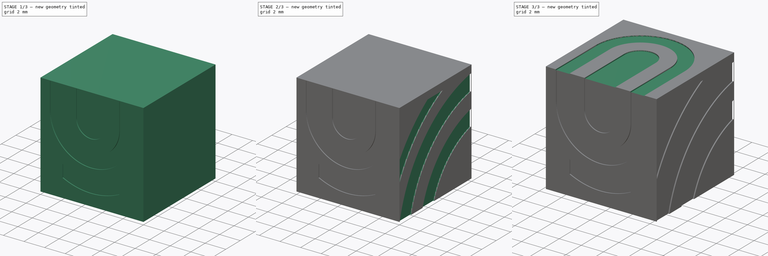
[diagram: build sequence overview — one tinted view per stage of 3, left to right]
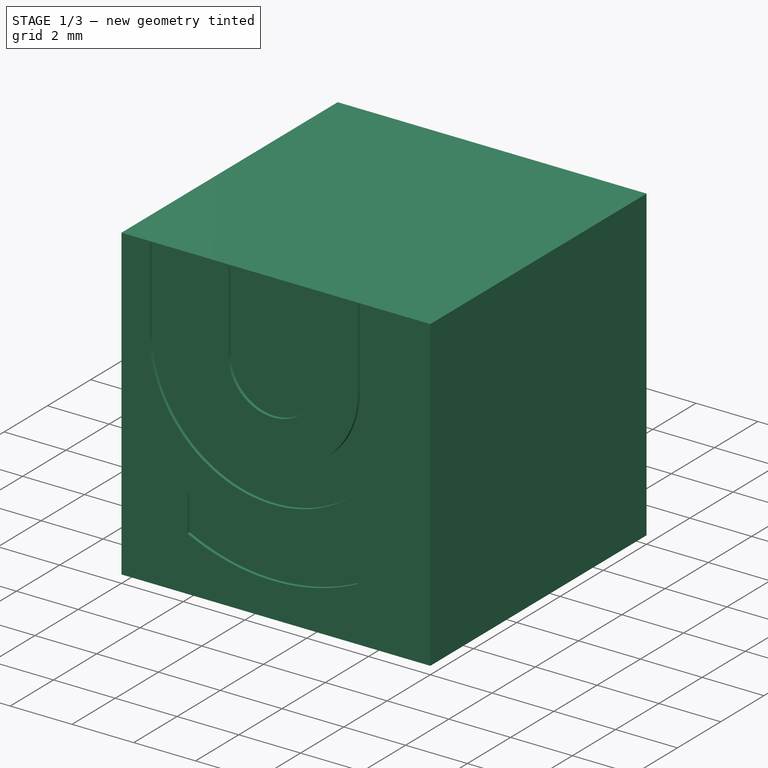
[diagram: stage 1 of 3 — iso view after this stage's code; geometry added in this stage tinted green]
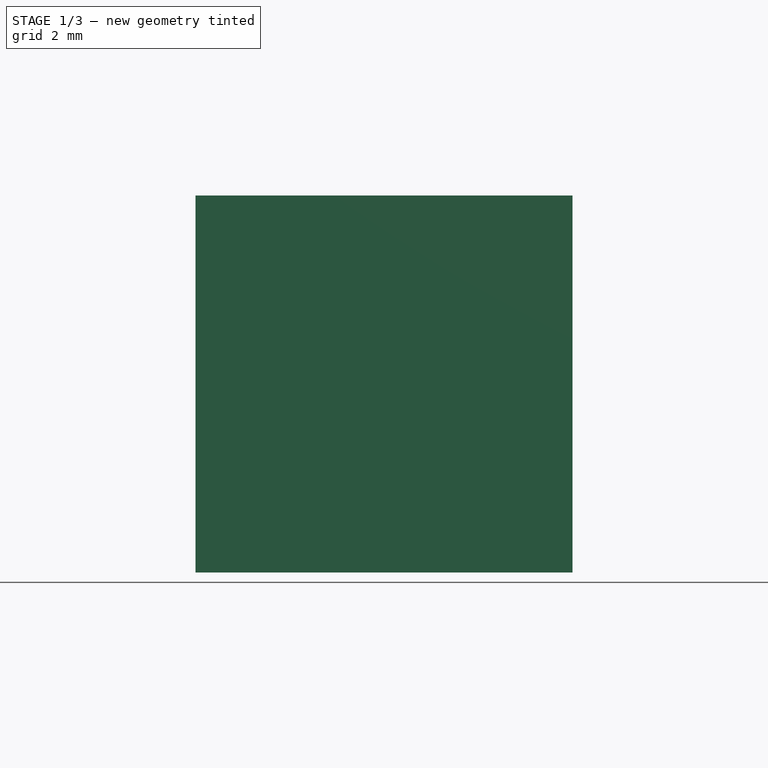
[diagram: stage 1 of 3 — front view after this stage's code; geometry added in this stage tinted green]
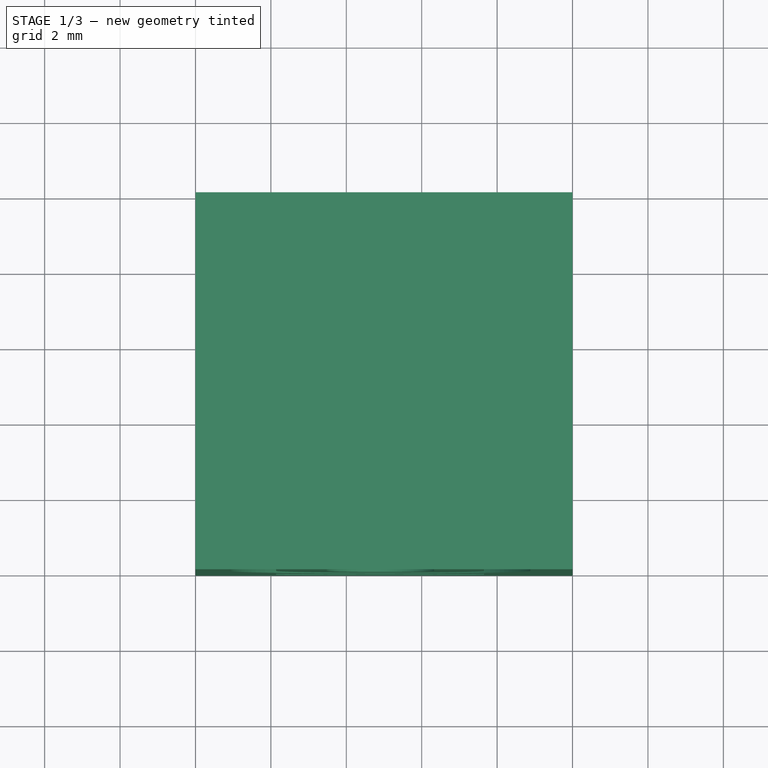
[diagram: stage 1 of 3 — top view after this stage's code; geometry added in this stage tinted green]
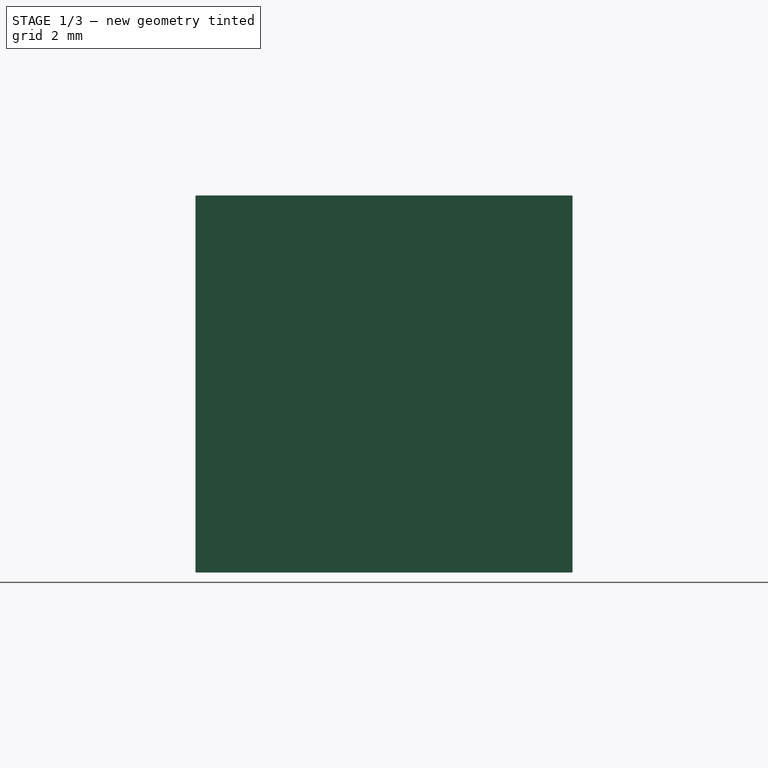
[diagram: stage 1 of 3 — right view after this stage's code; geometry added in this stage tinted green]
FCSTD DOCUMENT  (FreeCAD 0.16R6706 (Git))
Label: doortem-third
License: All rights reserved
LicenseURL: http://en.wikipedia.org/wiki/All_rights_reserved
objects: Sketcher::SketchObject×6, PartDesign::Pocket×5, Part::Box×1, PartDesign::Pad×1, PartDesign::Chamfer×1
note: 20 computed .brp shape members not serialized (recipe doc carries the construction recipe); baked Part::Feature solids carry a one-line shape summary decoded from their .brp

FEATURE [Part::Box] Box  label="Cube"
  Height = 10
  Length = 10
  Width = 10
FEATURE [Sketcher::SketchObject] Sketch  label="Front"
  Placement = pos=(0,0,0) rot=(1,0,0;1.5708rad)
  Support = -> Box [Face3]
  sketch-geometry (16):
    g0: ArcOfCircle CenterX=4.89521 CenterY=7.33926 CenterZ=0 NormalX=0 NormalY=0 NormalZ=1 Radius=1.4315 StartAngle=3.14159 EndAngle=6.28319
    g1: LineSegment StartX=6.32671 StartY=7.33926 StartZ=0 EndX=6.32671 EndY=9.95769 EndZ=0
    g2: LineSegment StartX=3.46371 StartY=7.33926 StartZ=0 EndX=3.46371 EndY=9.95769 EndZ=0
    g3: ArcOfCircle CenterX=4.89521 CenterY=7.33926 CenterZ=0 NormalX=0 NormalY=0 NormalZ=1 Radius=2.75621 StartAngle=3.14159 EndAngle=6.28319
    g4: LineSegment StartX=7.65142 StartY=7.33926 StartZ=0 EndX=7.65142 EndY=9.95769 EndZ=0
    g5: LineSegment StartX=2.13899 StartY=7.33926 StartZ=0 EndX=2.13899 EndY=9.95769 EndZ=0
    g6: ArcOfCircle CenterX=4.89521 CenterY=7.33926 CenterZ=0 NormalX=0 NormalY=0 NormalZ=1 Radius=3.98423 StartAngle=3.14159 EndAngle=6.28319
    g7: LineSegment StartX=8.87943 StartY=7.33926 StartZ=0 EndX=8.87943 EndY=9.95769 EndZ=0
    g8: LineSegment StartX=0.91098 StartY=7.33926 StartZ=0 EndX=0.91098 EndY=9.95769 EndZ=0
    g9: LineSegment StartX=3.46371 StartY=9.95769 StartZ=0 EndX=6.32671 EndY=9.95769 EndZ=0
    g10: LineSegment StartX=0.91098 StartY=9.95769 StartZ=0 EndX=2.13899 EndY=9.95769 EndZ=0
    g11: LineSegment StartX=7.65142 StartY=9.95769 StartZ=0 EndX=8.87943 EndY=9.95769 EndZ=0
    g12: ArcOfCircle CenterX=4.89521 CenterY=7.33926 CenterZ=0 NormalX=0 NormalY=0 NormalZ=1 Radius=5.14159 StartAngle=4.14662 EndAngle=5.27816
    g13: ArcOfCircle CenterX=4.89521 CenterY=7.33926 CenterZ=0 NormalX=0 NormalY=0 NormalZ=1 Radius=6.21322 StartAngle=4.25277 EndAngle=5.17201
    g14: LineSegment StartX=2.13899 StartY=1.77084 StartZ=0 EndX=2.13899 EndY=2.99885 EndZ=0
    g15: LineSegment StartX=7.65142 StartY=2.99885 StartZ=0 EndX=7.65142 EndY=1.77084 EndZ=0
  constraints (36):
    c: Tangent(g0,g2) = 1.5708
    c: Tangent(g0,g1) = -1.5708
    c: Vertical(g1)
    c: Tangent(g3,g5) = 1.5708
    c: Tangent(g3,g4) = -1.5708
    c: Vertical(g4)
    c: Tangent(g6,g8) = 1.5708
    c: Tangent(g6,g7) = -1.5708
    c: Vertical(g7)
    c: Coincident(g6,g3)
    c: Coincident(g3,g0)
    c: Coincident(g9,g2)
    c: Coincident(g9,g1)
    c: Horizontal(g9)
    c: Coincident(g10,g8)
    c: Coincident(g10,g5)
    c: Coincident(g11,g4)
    c: Coincident(g11,g7)
    c: Horizontal(g11)
    c: Horizontal(g10)
    c: DistanceY(g2,g5) = 0
    c: DistanceY(g1,g4) = 0
    c: Vertical(g8)
    c: Vertical(g5)
    c: Vertical(g2)
    c: Coincident(g14,g13)
    c: Coincident(g14,g12)
    c: Coincident(g15,g12)
    c: Coincident(g15,g13)
    c: Coincident(g12,g13)
    c: Coincident(g0,g12)
    c: Vertical(g14)
    c: Vertical(g15)
    c: Equal(g15,g10)
    c: DistanceX(g3,g12) = 0
    c: DistanceX(g12,g3) = 0
FEATURE [PartDesign::Pocket] Pocket
  Length = 0.1
  Sketch = -> Sketch
  Type = 0
FEATURE [Sketcher::SketchObject] Sketch002  label="Side A"
  Placement = pos=(0,0,0) rot=(0.57735,-0.57735,-0.57735;2.0944rad)
  Support = -> Pocket [Face1]
  sketch-geometry (12):
    g0: ArcOfCircle CenterX=-11.883 CenterY=-2.74459 CenterZ=0 NormalX=0 NormalY=0 NormalZ=1 Radius=7.57889 StartAngle=0.370558 EndAngle=1.31083
    g1: ArcOfCircle CenterX=-11.883 CenterY=-2.74459 CenterZ=0 NormalX=0 NormalY=0 NormalZ=1 Radius=9.09546 StartAngle=0.306531 EndAngle=1.35494
    g2: ArcOfCircle CenterX=-11.883 CenterY=-2.74459 CenterZ=0 NormalX=0 NormalY=0 NormalZ=1 Radius=10.6013 StartAngle=0.261875 EndAngle=1.38598
    g3: ArcOfCircle CenterX=-11.883 CenterY=-2.74459 CenterZ=0 NormalX=0 NormalY=0 NormalZ=1 Radius=12.1606 StartAngle=0.227656 EndAngle=1.4099
    g4: ArcOfCircle CenterX=-11.883 CenterY=-2.74459 CenterZ=0 NormalX=0 NormalY=0 NormalZ=1 Radius=13.3679 StartAngle=0.481692 EndAngle=1.11506
    g5: ArcOfCircle CenterX=-11.883 CenterY=-2.74459 CenterZ=0 NormalX=0 NormalY=0 NormalZ=1 Radius=14.4101 StartAngle=0.605674 EndAngle=0.984497
    g6: LineSegment StartX=-9.93486 StartY=6.1398 StartZ=0 EndX=-9.93486 EndY=4.57965 EndZ=0
    g7: LineSegment StartX=-4.81849 StartY=0 StartZ=0 EndX=-3.21148 EndY=0 EndZ=0
    g8: LineSegment StartX=-9.93486 StartY=9.25896 StartZ=0 EndX=-9.93486 EndY=7.67614 EndZ=0
    g9: LineSegment StartX=-1.64314 StartY=0 StartZ=0 EndX=-0.0361256 EndY=0 EndZ=0
    g10: LineSegment StartX=-0.0361256 StartY=3.4485 StartZ=0 EndX=-0.0361256 EndY=5.45933 EndZ=0
    g11: LineSegment StartX=-5.99937 StartY=9.25896 StartZ=0 EndX=-3.91009 EndY=9.25896 EndZ=0
  constraints (29):
    c: PointOnObject(g1,g-1)
    c: PointOnObject(g3,g-1)
    c: Coincident(g6,g1)
    c: Coincident(g6,g0)
    c: Coincident(g7,g0)
    c: Coincident(g7,g1)
    c: Coincident(g8,g3)
    c: Coincident(g8,g2)
    c: Vertical(g8)
    c: Coincident(g9,g2)
    c: Coincident(g9,g3)
    c: Horizontal(g9)
    c: Coincident(g10,g4)
    c: Coincident(g10,g5)
    c: Coincident(g11,g4)
    c: Coincident(g11,g5)
    c: Vertical(g6)
    c: Horizontal(g7)
    c: Vertical(g10)
    c: Horizontal(g11)
    c: Coincident(g0,g1)
    c: Coincident(g4,g5)
    c: Coincident(g2,g3)
    c: Coincident(g0,g2)
    c: DistanceX(g2,g1) = 0
    c: Coincident(g0,g4)
    c: Equal(g9,g7)
    c: DistanceX(g4,g3) = 0
    c: DistanceY(g3,g4) = 0
FEATURE [PartDesign::Pocket] Pocket001
  Length = 0.1
  Sketch = -> Sketch002
  Type = 0
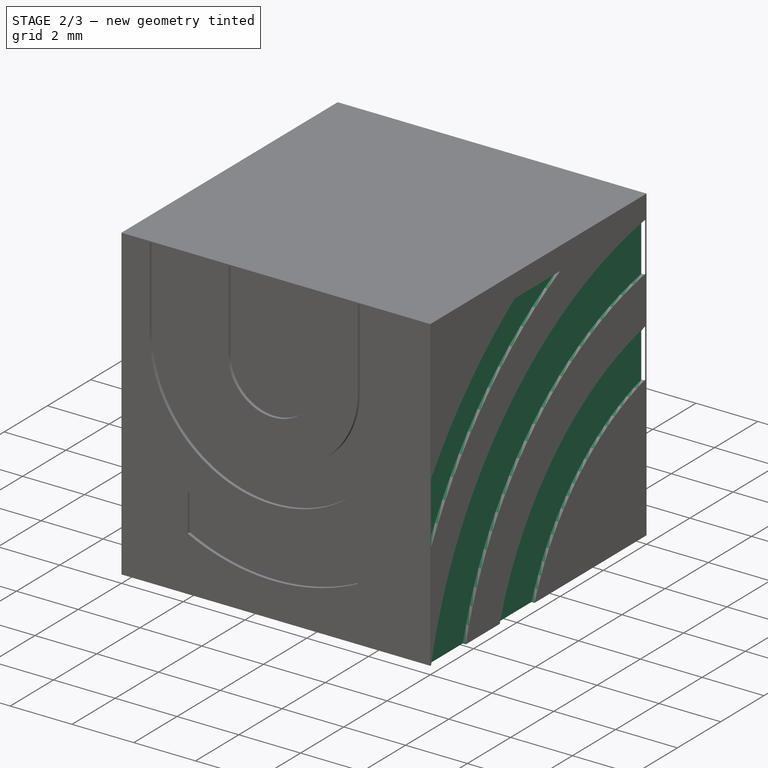
[diagram: stage 2 of 3 — iso view after this stage's code; geometry added in this stage tinted green]
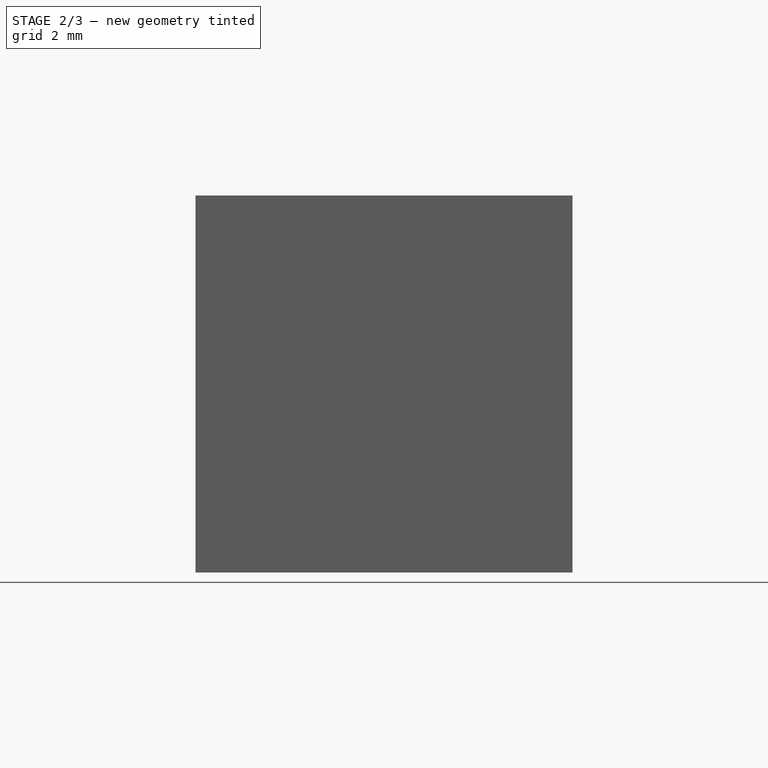
[diagram: stage 2 of 3 — front view after this stage's code; geometry added in this stage tinted green]
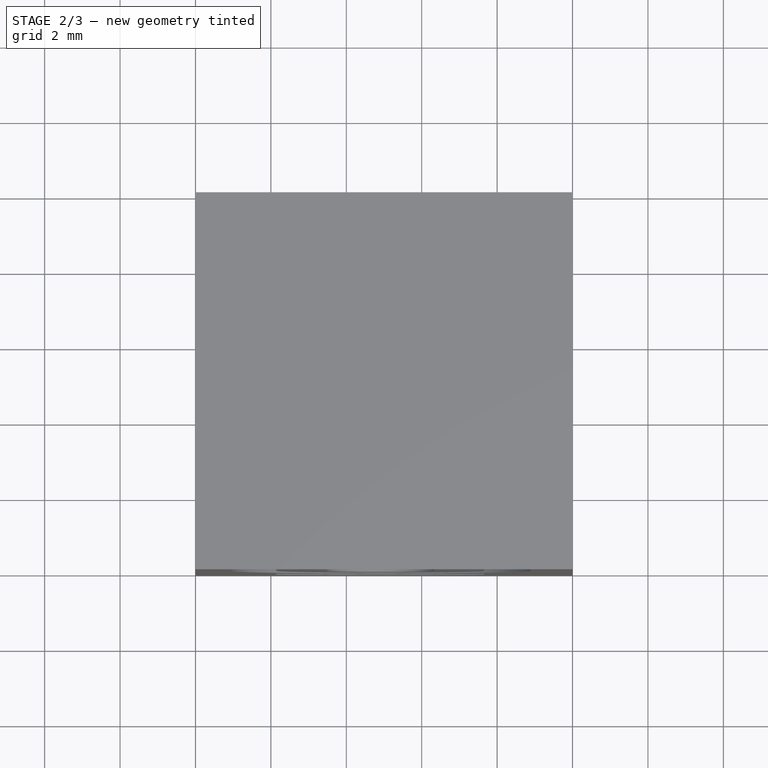
[diagram: stage 2 of 3 — top view after this stage's code; geometry added in this stage tinted green]
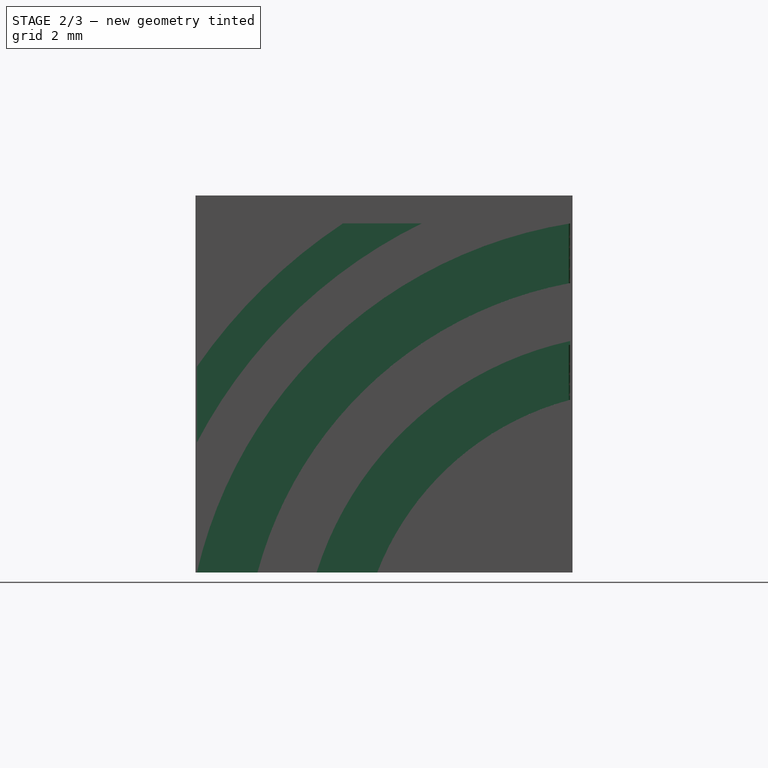
[diagram: stage 2 of 3 — right view after this stage's code; geometry added in this stage tinted green]
FEATURE [Sketcher::SketchObject] MirroredSketch  label="Side B"
  Placement = pos=(10,0,0) rot=(0.57735,0.57735,0.57735;2.0944rad)
  Support = -> Pocket001 [Face16]
  sketch-geometry (12):
    g0: ArcOfCircle CenterX=11.883 CenterY=-2.74459 CenterZ=0 NormalX=0 NormalY=0 NormalZ=1 Radius=7.57889 StartAngle=1.83076 EndAngle=2.77103
    g1: ArcOfCircle CenterX=11.883 CenterY=-2.74459 CenterZ=0 NormalX=0 NormalY=0 NormalZ=1 Radius=9.09546 StartAngle=1.78665 EndAngle=2.83506
    g2: ArcOfCircle CenterX=11.883 CenterY=-2.74459 CenterZ=0 NormalX=0 NormalY=0 NormalZ=1 Radius=10.6013 StartAngle=1.75561 EndAngle=2.87972
    g3: ArcOfCircle CenterX=11.883 CenterY=-2.74459 CenterZ=0 NormalX=0 NormalY=0 NormalZ=1 Radius=12.1606 StartAngle=1.73169 EndAngle=2.91394
    g4: ArcOfCircle CenterX=11.883 CenterY=-2.74459 CenterZ=0 NormalX=0 NormalY=0 NormalZ=1 Radius=13.3679 StartAngle=2.02654 EndAngle=2.6599
    g5: ArcOfCircle CenterX=11.883 CenterY=-2.74459 CenterZ=0 NormalX=0 NormalY=0 NormalZ=1 Radius=14.4101 StartAngle=2.1571 EndAngle=2.53592
    g6: LineSegment StartX=9.93486 StartY=6.1398 StartZ=0 EndX=9.93486 EndY=4.57965 EndZ=0
    g7: LineSegment StartX=4.81849 StartY=0 StartZ=0 EndX=3.21148 EndY=0 EndZ=0
    g8: LineSegment StartX=9.93486 StartY=9.25896 StartZ=0 EndX=9.93486 EndY=7.67614 EndZ=0
    g9: LineSegment StartX=1.64314 StartY=0 StartZ=0 EndX=0.0361256 EndY=0 EndZ=0
    g10: LineSegment StartX=0.0361256 StartY=3.4485 StartZ=0 EndX=0.0361256 EndY=5.45933 EndZ=0
    g11: LineSegment StartX=5.99937 StartY=9.25896 StartZ=0 EndX=3.91009 EndY=9.25896 EndZ=0
  constraints (24):
    c: Coincident(g6,g1)
    c: Coincident(g6,g0)
    c: Coincident(g7,g0)
    c: Coincident(g7,g1)
    c: Coincident(g8,g3)
    c: Coincident(g8,g2)
    c: Vertical(g8)
    c: Coincident(g9,g2)
    c: Coincident(g9,g3)
    c: Horizontal(g9)
    c: Coincident(g10,g4)
    c: Coincident(g10,g5)
    c: Coincident(g11,g4)
    c: Coincident(g11,g5)
    c: Vertical(g6)
    c: Horizontal(g7)
    c: Vertical(g10)
    c: Horizontal(g11)
    c: Coincident(g0,g1)
    c: Coincident(g4,g5)
    c: Coincident(g2,g3)
    c: Coincident(g0,g2)
    c: Coincident(g0,g4)
    c: Equal(g9,g7)
FEATURE [PartDesign::Pocket] Pocket002
  Length = 0.1
  Sketch = -> MirroredSketch
  Type = 0
FEATURE [Sketcher::SketchObject] Sketch003  label="Back"
  Placement = pos=(0,10,0) rot=(0,0.707107,0.707107;3.14159rad)
  Support = -> Pocket002 [Face3]
  sketch-geometry (26):
    g0: LineSegment StartX=-9.99966 StartY=-0.012374 StartZ=0 EndX=-8.64355 EndY=-0.012374 EndZ=0
    g1: LineSegment StartX=-8.64355 StartY=-0.012374 StartZ=0 EndX=-8.64355 EndY=1.99585 EndZ=0
    g2: LineSegment StartX=-9.99966 StartY=6.16434 StartZ=0 EndX=-9.99966 EndY=-0.012374 EndZ=0
    g3: LineSegment StartX=-1.54769 StartY=0 StartZ=0 EndX=0 EndY=0 EndZ=0
    g4: LineSegment StartX=0 StartY=0 StartZ=0 EndX=0 EndY=6.16434 EndZ=0
    g5: LineSegment StartX=-1.54769 StartY=1.99585 StartZ=0 EndX=-1.54769 EndY=0 EndZ=0
    g6: LineSegment StartX=-4.10436 StartY=0 StartZ=0 EndX=-2.66536 EndY=0 EndZ=0
    g7: LineSegment StartX=-2.66536 StartY=0 StartZ=0 EndX=-2.66536 EndY=1.99585 EndZ=0
    g8: LineSegment StartX=0 StartY=7.65437 StartZ=0 EndX=0 EndY=9.37382 EndZ=0
    g9: LineSegment StartX=-4.10436 StartY=1.99585 StartZ=0 EndX=-4.10436 EndY=0 EndZ=0
    g10: LineSegment StartX=-7.61615 StartY=0 StartZ=0 EndX=-6.26004 EndY=0 EndZ=0
    g11: LineSegment StartX=-6.26004 StartY=0 StartZ=0 EndX=-6.26004 EndY=1.99585 EndZ=0
    g12: LineSegment StartX=-9.99966 StartY=9.37382 StartZ=0 EndX=-9.99966 EndY=7.65437 EndZ=0
    g13: LineSegment StartX=-7.61615 StartY=1.99585 StartZ=0 EndX=-7.61615 EndY=0 EndZ=0
    g14: LineSegment StartX=-6.65638 StartY=9.37382 StartZ=0 EndX=-5.36304 EndY=9.37382 EndZ=0
    g15: LineSegment StartX=-4.48209 StartY=9.37382 StartZ=0 EndX=-3.02029 EndY=9.37382 EndZ=0
    g16: ArcOfCircle CenterX=-14.8338 CenterY=2.28684 CenterZ=0 NormalX=0 NormalY=0 NormalZ=1 Radius=6.19711 StartAngle=6.23621 EndAngle=6.95921
    g17: ArcOfCircle CenterX=-14.8338 CenterY=2.28684 CenterZ=0 NormalX=0 NormalY=0 NormalZ=1 Radius=7.22354 StartAngle=6.24289 EndAngle=7.12082
    g18: ArcOfCircle CenterX=-14.8338 CenterY=2.28684 CenterZ=0 NormalX=0 NormalY=0 NormalZ=1 Radius=8.57872 StartAngle=6.24926 EndAngle=7.25536
    g19: ArcOfCircle CenterX=-14.8338 CenterY=2.28684 CenterZ=0 NormalX=0 NormalY=0 NormalZ=1 Radius=10.8211 StartAngle=0.417978 EndAngle=0.714081
    g20: ArcOfCircle CenterX=-14.8338 CenterY=2.28684 CenterZ=0 NormalX=0 NormalY=0 NormalZ=1 Radius=11.8288 StartAngle=0.580749 EndAngle=0.642411
    g21: ArcOfCircle CenterX=4.05602 CenterY=2.28684 CenterZ=0 NormalX=0 NormalY=0 NormalZ=1 Radius=5.61126 StartAngle=2.37869 EndAngle=3.19347
    g22: ArcOfCircle CenterX=4.05602 CenterY=2.28684 CenterZ=0 NormalX=0 NormalY=0 NormalZ=1 Radius=6.72768 StartAngle=2.21791 EndAngle=3.18486
    g23: ArcOfCircle CenterX=4.05602 CenterY=2.28684 CenterZ=0 NormalX=0 NormalY=0 NormalZ=1 Radius=8.16557 StartAngle=2.09061 EndAngle=3.17724
    g24: ArcOfCircle CenterX=4.05602 CenterY=2.28684 CenterZ=0 NormalX=0 NormalY=0 NormalZ=1 Radius=10.015 StartAngle=2.35544 EndAngle=2.68757
    g25: ArcOfCircle CenterX=4.05602 CenterY=2.28684 CenterZ=0 NormalX=0 NormalY=0 NormalZ=1 Radius=11.0962 StartAngle=2.4488 EndAngle=2.51686
  constraints (68):
    c: Coincident(g0,g1)
    c: Vertical(g1)
    c: Coincident(g2,g0)
    c: Vertical(g2)
    c: PointOnObject(g3,g-1)
    c: Coincident(g3,g-1)
    c: Coincident(g3,g4)
    c: PointOnObject(g4,g-2)
    c: Coincident(g5,g3)
    c: Vertical(g5)
    c: Horizontal(g6)
    c: Coincident(g6,g7)
    c: Vertical(g8)
    c: Coincident(g9,g6)
    c: Coincident(g10,g11)
    c: Vertical(g12)
    c: Coincident(g13,g10)
    c: Horizontal(g0)
    c: Horizontal(g10)
    c: DistanceY(g10,g6) = 0
    c: DistanceY(g6,g3) = 0
    c: Vertical(g13)
    c: Vertical(g11)
    c: Vertical(g9)
    c: Vertical(g7)
    c: DistanceX(g12,g2) = 0
    c: DistanceX(g8,g4) = 0
    c: Horizontal(g14)
    c: Horizontal(g15)
    c: DistanceX(g20,g19) = 0
    c: Coincident(g16,g2)
    c: Coincident(g16,g1)
    c: Coincident(g17,g12)
    c: Coincident(g17,g13)
    c: Coincident(g18,g12)
    c: Coincident(g18,g11)
    c: Coincident(g19,g14)
    c: Coincident(g20,g14)
    c: Coincident(g16,g17)
    c: Coincident(g16,g18)
    c: Coincident(g16,g19)
    c: Coincident(g16,g20)
    c: DistanceY(g14,g12) = 0
    c: Equal(g0,g10)
    c: DistanceY(g15,g14) = 0
    c: DistanceY(g1,g13) = 0
    c: DistanceY(g13,g11) = 0
    c: Coincident(g21,g4)
    c: Coincident(g21,g5)
    c: Coincident(g22,g8)
    c: Coincident(g22,g7)
    c: Coincident(g23,g8)
    c: Coincident(g23,g9)
    c: Coincident(g24,g15)
    c: Coincident(g24,g19)
    c: Coincident(g25,g15)
    c: Coincident(g25,g20)
    c: Coincident(g21,g22)
    c: Coincident(g21,g23)
    c: Coincident(g21,g24)
    c: Coincident(g21,g25)
    c: DistanceY(g5,g7) = 0
    c: DistanceY(g7,g9) = 0
    c: DistanceY(g11,g9) = 0
    c: DistanceY(g21,g16) = 0
    c: DistanceY(g8,g12) = 0
    c: DistanceY(g12,g8) = 0
    c: DistanceY(g2,g4) = 0
FEATURE [PartDesign::Pocket] Pocket003
  Length = 0.1
  Sketch = -> Sketch003
  Type = 0
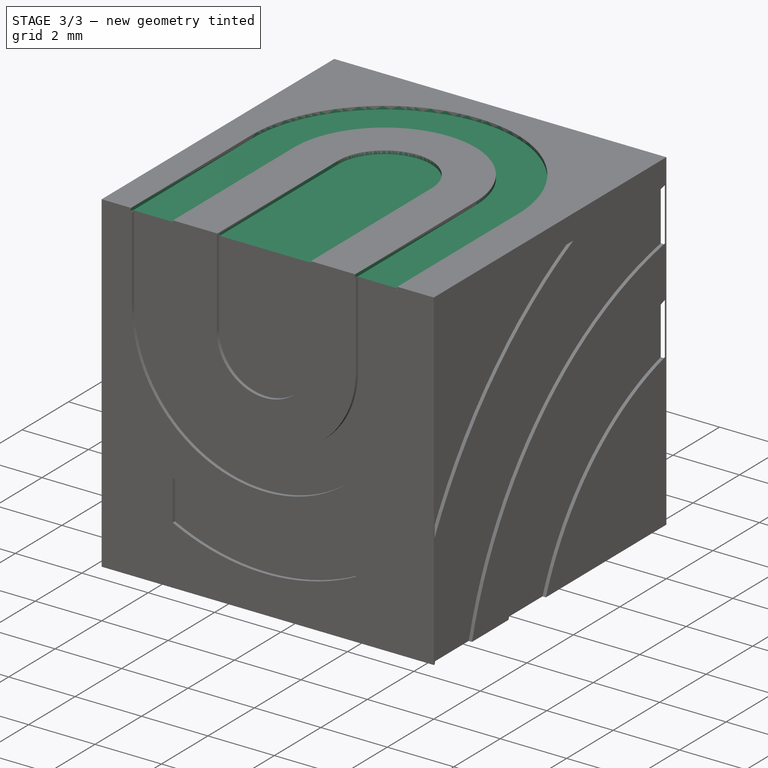
[diagram: stage 3 of 3 — iso view after this stage's code; geometry added in this stage tinted green]
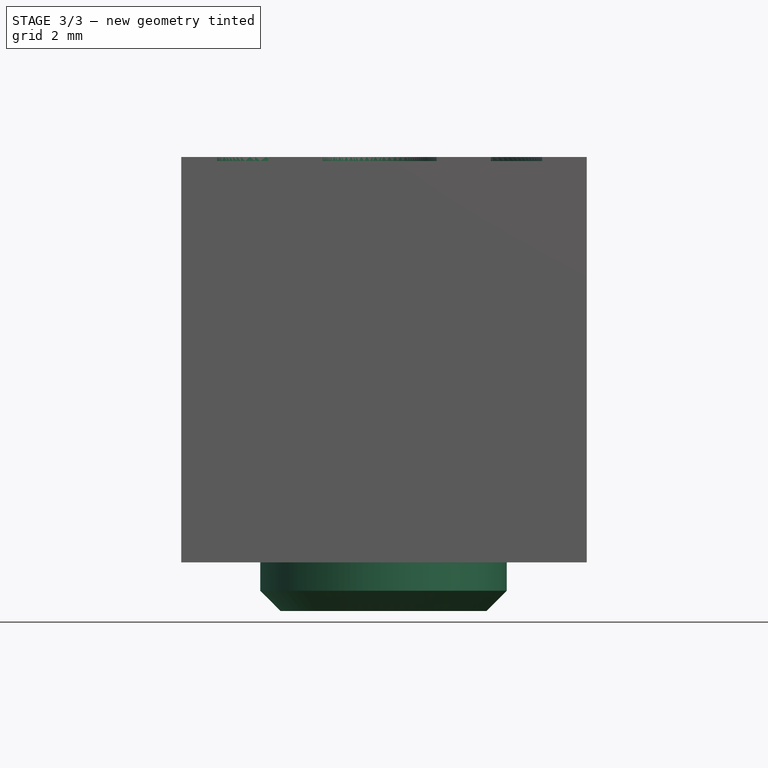
[diagram: stage 3 of 3 — front view after this stage's code; geometry added in this stage tinted green]
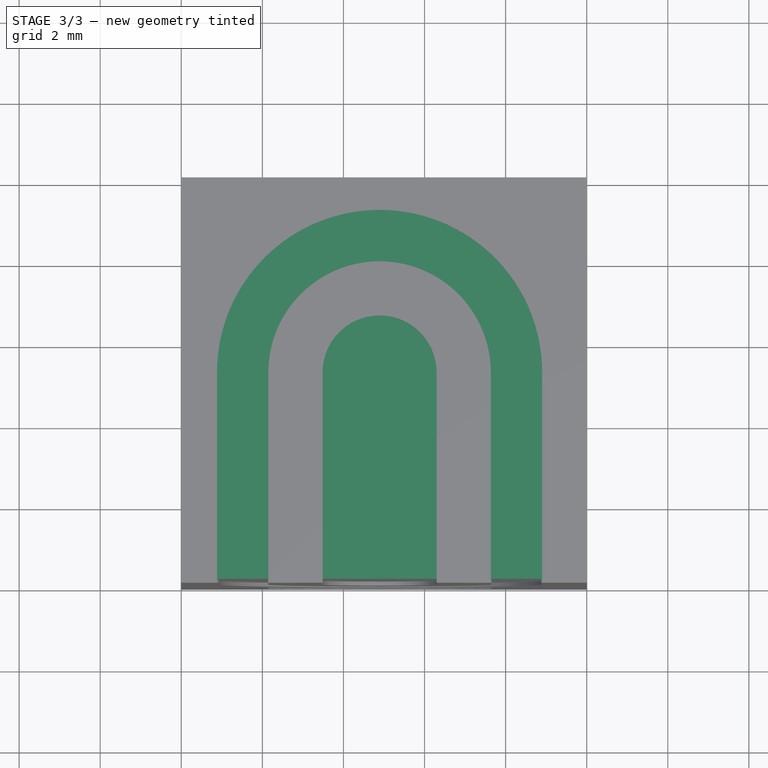
[diagram: stage 3 of 3 — top view after this stage's code; geometry added in this stage tinted green]
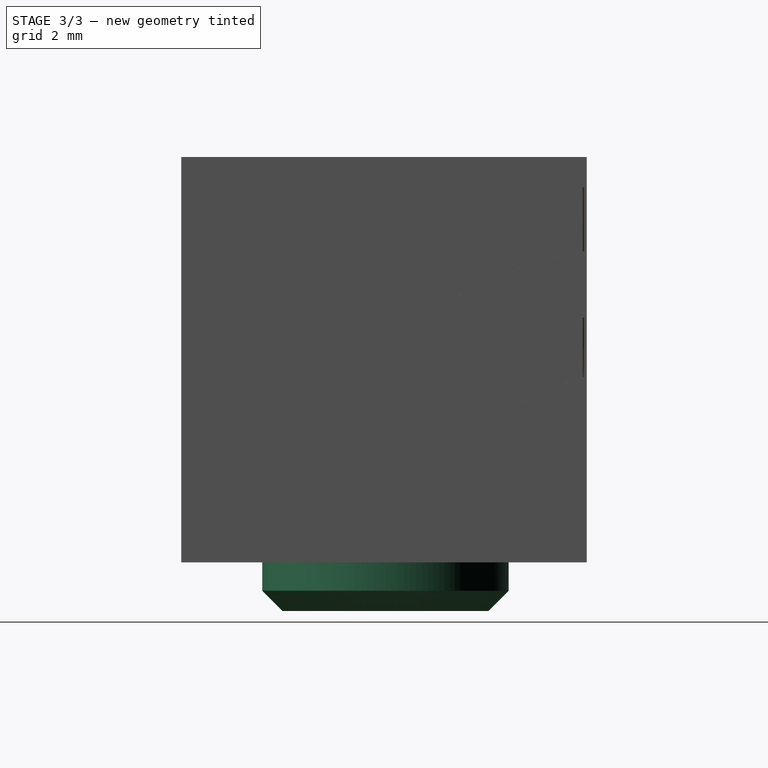
[diagram: stage 3 of 3 — right view after this stage's code; geometry added in this stage tinted green]
FEATURE [Sketcher::SketchObject] Sketch001  label="Top"
  Placement = pos=(0,0,10) rot=(0,0,1;0rad)
  Support = -> Pocket003 [Face8]
  sketch-geometry (12):
    g0: ArcOfCircle CenterX=4.89109 CenterY=5.18548 CenterZ=0 NormalX=0 NormalY=0 NormalZ=1 Radius=2.74346 StartAngle=0 EndAngle=3.14159
    g1: LineSegment StartX=2.14763 StartY=5.18548 StartZ=0 EndX=2.14763 EndY=-0.110033 EndZ=0
    g2: LineSegment StartX=7.63455 StartY=5.18548 StartZ=0 EndX=7.63455 EndY=-0.110033 EndZ=0
    g3: ArcOfCircle CenterX=4.89109 CenterY=5.18548 CenterZ=0 NormalX=0 NormalY=0 NormalZ=1 Radius=1.40599 StartAngle=0 EndAngle=3.14159
    g4: LineSegment StartX=3.4851 StartY=5.18548 StartZ=0 EndX=3.4851 EndY=-0.110033 EndZ=0
    g5: LineSegment StartX=6.29708 StartY=5.18548 StartZ=0 EndX=6.29708 EndY=-0.110033 EndZ=0
    g6: ArcOfCircle CenterX=4.89109 CenterY=5.18548 CenterZ=0 NormalX=0 NormalY=0 NormalZ=1 Radius=4.01041 StartAngle=0 EndAngle=3.14159
    g7: LineSegment StartX=0.880684 StartY=5.18548 StartZ=0 EndX=0.880684 EndY=-0.110033 EndZ=0
    g8: LineSegment StartX=8.9015 StartY=5.18548 StartZ=0 EndX=8.9015 EndY=-0.110033 EndZ=0
    g9: LineSegment StartX=3.4851 StartY=-0.110033 StartZ=0 EndX=6.29708 EndY=-0.110033 EndZ=0
    g10: LineSegment StartX=0.880684 StartY=-0.110033 StartZ=0 EndX=2.14763 EndY=-0.110033 EndZ=0
    g11: LineSegment StartX=7.63455 StartY=-0.110033 StartZ=0 EndX=8.9015 EndY=-0.110033 EndZ=0
  constraints (25):
    c: Tangent(g0,g2) = 1.5708
    c: Tangent(g0,g1) = -1.5708
    c: Vertical(g1)
    c: Tangent(g3,g5) = 1.5708
    c: Tangent(g3,g4) = -1.5708
    c: Vertical(g4)
    c: Tangent(g6,g8) = 1.5708
    c: Tangent(g6,g7) = -1.5708
    c: Vertical(g7)
    c: Coincident(g6,g3)
    c: Coincident(g0,g3)
    c: Coincident(g9,g4)
    c: Coincident(g9,g5)
    c: Horizontal(g9)
    c: Coincident(g10,g7)
    c: Coincident(g10,g1)
    c: Coincident(g11,g2)
    c: Coincident(g11,g8)
    c: Horizontal(g10)
    c: Horizontal(g11)
    c: DistanceY(g2,g5) = 0
    c: DistanceY(g1,g4) = 0
    c: Equal(g10,g11)
    c: Vertical(g5)
    c: Vertical(g2)
FEATURE [PartDesign::Pocket] Pocket004
  Length = 0.1
  Sketch = -> Sketch001
  Type = 0
FEATURE [Sketcher::SketchObject] Sketch004
  Placement = pos=(0,0,0) rot=(1,0,0;3.14159rad)
  Support = -> Pocket004 [Face6]
  sketch-geometry (1):
    g0: Circle CenterX=4.98763 CenterY=-5.03597 CenterZ=0 NormalX=0 NormalY=0 NormalZ=1 Radius=3.03914
FEATURE [PartDesign::Pad] Pad
  Length = 1.2
  Length2 = 100
  Sketch = -> Sketch004
  Type = 0
FEATURE [PartDesign::Chamfer] Chamfer
  Base = -> Pad [Edge191]
  Size = 0.5
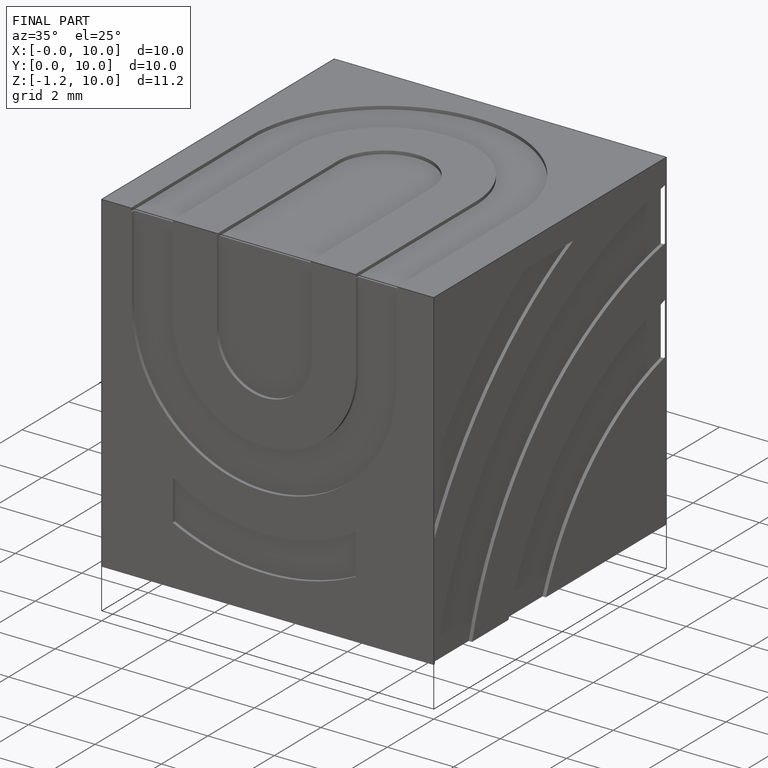
[diagram: finished part — iso view with bounding-box wireframe]
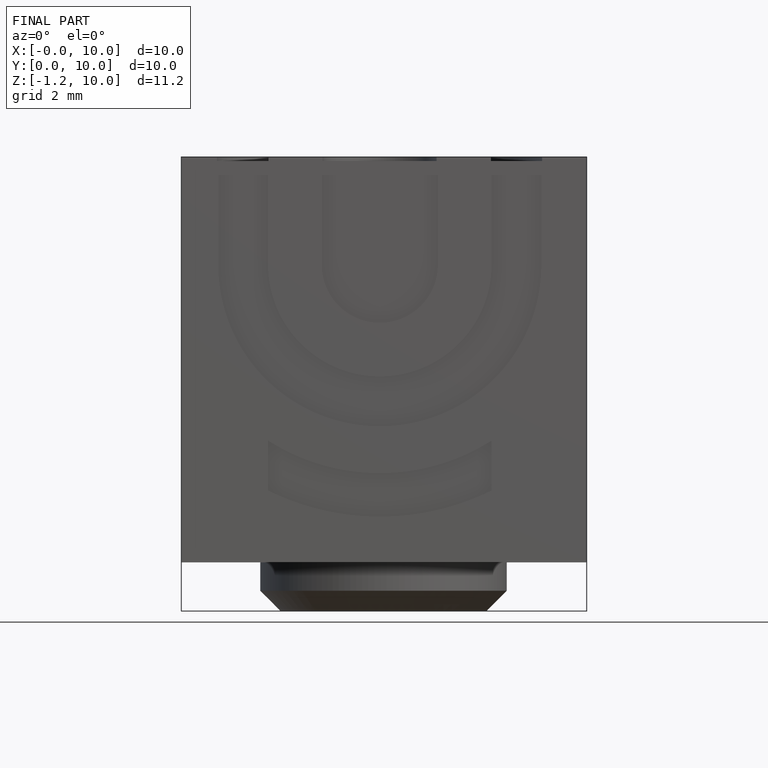
[diagram: finished part — front view with bounding-box wireframe]
